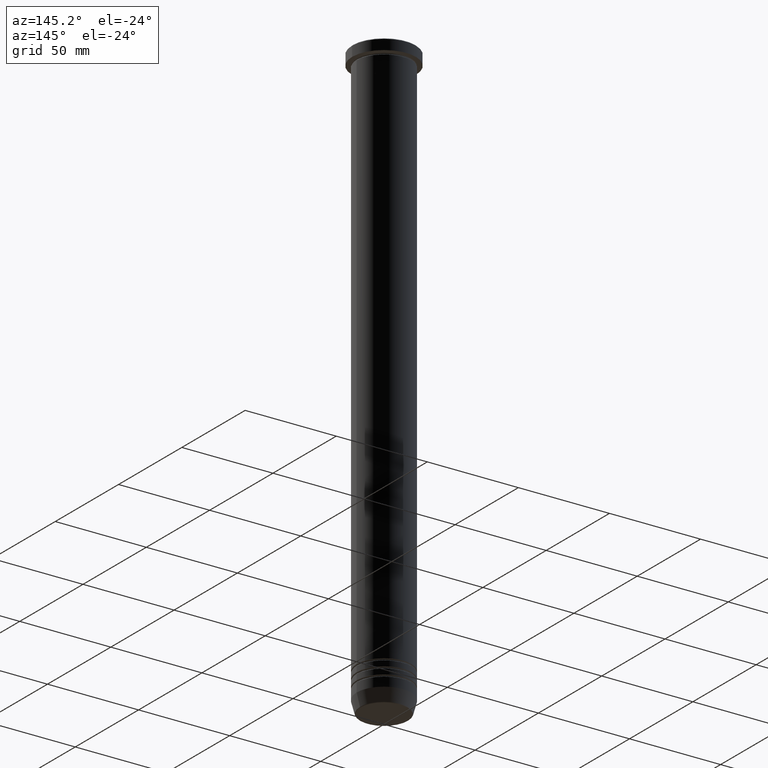
[diagram: clean part render]
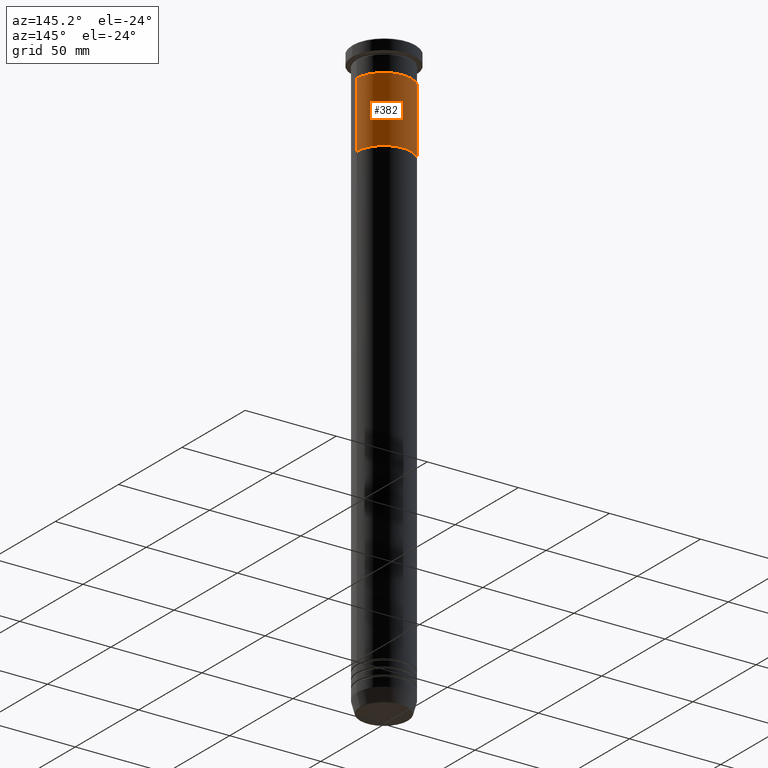
[diagram: same view with one face highlighted and labeled with its STEP entity id]
A machine part, auxiliary view. The second image highlights one B-rep face of the part: STEP entity #382.
In plain terms, the highlighted cylindrical surface (edge-blend (fillet) strip) has radius 15 mm, axis along (-0, -0, 1).
Its self-contained STEP definition (entity closure, byte-faithful):
#63 = DIRECTION ( 'NONE',  ( -0.000000000000000000, -0.000000000000000000, 1.000000000000000000 ) ) ;
#66 = CIRCLE ( 'NONE', #895, 15.00000000000000000 ) ;
#74 = CARTESIAN_POINT ( 'NONE',  ( 0.000000000000000000, 0.000000000000000000, -52.00000000000000000 ) ) ;
#78 = EDGE_CURVE ( 'NONE', #202, #314, #66, .T. ) ;
#95 = CYLINDRICAL_SURFACE ( 'NONE', #228, 15.00000000000000000 ) ;
#107 = DIRECTION ( 'NONE',  ( -0.000000000000000000, -0.000000000000000000, 1.000000000000000000 ) ) ;
#136 = CARTESIAN_POINT ( 'NONE',  ( 0.000000000000000000, 0.000000000000000000, -16.00000000000000000 ) ) ;
#183 = CARTESIAN_POINT ( 'NONE',  ( 0.000000000000000000, 0.000000000000000000, -52.00000000000000000 ) ) ;
#194 = CARTESIAN_POINT ( 'NONE',  ( -15.00000000000000000, 1.836970198721029589E-15, -16.00000000000000000 ) ) ;
#202 = VERTEX_POINT ( 'NONE', #194 ) ;
#228 = AXIS2_PLACEMENT_3D ( 'NONE', #183, #107, #804 ) ;
#239 = VECTOR ( 'NONE', #959, 1000.000000000000000 ) ;
#246 = LINE ( 'NONE', #763, #408 ) ;
#256 = DIRECTION ( 'NONE',  ( 0.000000000000000000, 0.000000000000000000, -1.000000000000000000 ) ) ;
#314 = VERTEX_POINT ( 'NONE', #739 ) ;
#332 = AXIS2_PLACEMENT_3D ( 'NONE', #74, #256, #418 ) ;
#341 = VERTEX_POINT ( 'NONE', #858 ) ;
#351 = EDGE_CURVE ( 'NONE', #1075, #314, #246, .T. ) ;
#382 = ADVANCED_FACE ( 'NONE', ( #613 ), #95, .T. ) ;
#408 = VECTOR ( 'NONE', #63, 1000.000000000000000 ) ;
#416 = EDGE_LOOP ( 'NONE', ( #985, #623, #900, #482 ) ) ;
#418 = DIRECTION ( 'NONE',  ( -1.000000000000000000, 0.000000000000000000, 0.000000000000000000 ) ) ;
#449 = EDGE_CURVE ( 'NONE', #341, #202, #604, .T. ) ;
#482 = ORIENTED_EDGE ( 'NONE', *, *, #351, .F. ) ;
#500 = EDGE_CURVE ( 'NONE', #341, #1075, #507, .T. ) ;
#507 = CIRCLE ( 'NONE', #332, 15.00000000000000000 ) ;
#572 = DIRECTION ( 'NONE',  ( -1.000000000000000000, 0.000000000000000000, 0.000000000000000000 ) ) ;
#604 = LINE ( 'NONE', #976, #239 ) ;
#613 = FACE_OUTER_BOUND ( 'NONE', #416, .T. ) ;
#623 = ORIENTED_EDGE ( 'NONE', *, *, #449, .T. ) ;
#739 = CARTESIAN_POINT ( 'NONE',  ( 15.00000000000000000, 0.000000000000000000, -16.00000000000000000 ) ) ;
#757 = CARTESIAN_POINT ( 'NONE',  ( 15.00000000000000000, 0.000000000000000000, -52.00000000000000000 ) ) ;
#763 = CARTESIAN_POINT ( 'NONE',  ( 15.00000000000000000, 0.000000000000000000, -52.00000000000000000 ) ) ;
#804 = DIRECTION ( 'NONE',  ( 1.000000000000000000, 0.000000000000000000, 0.000000000000000000 ) ) ;
#858 = CARTESIAN_POINT ( 'NONE',  ( -15.00000000000000000, 1.836970198721029589E-15, -52.00000000000000000 ) ) ;
#895 = AXIS2_PLACEMENT_3D ( 'NONE', #136, #1011, #572 ) ;
#900 = ORIENTED_EDGE ( 'NONE', *, *, #78, .T. ) ;
#959 = DIRECTION ( 'NONE',  ( -0.000000000000000000, -0.000000000000000000, 1.000000000000000000 ) ) ;
#976 = CARTESIAN_POINT ( 'NONE',  ( -15.00000000000000000, 1.836970198721029589E-15, -52.00000000000000000 ) ) ;
#985 = ORIENTED_EDGE ( 'NONE', *, *, #500, .F. ) ;
#1011 = DIRECTION ( 'NONE',  ( 0.000000000000000000, 0.000000000000000000, -1.000000000000000000 ) ) ;
#1075 = VERTEX_POINT ( 'NONE', #757 ) ;